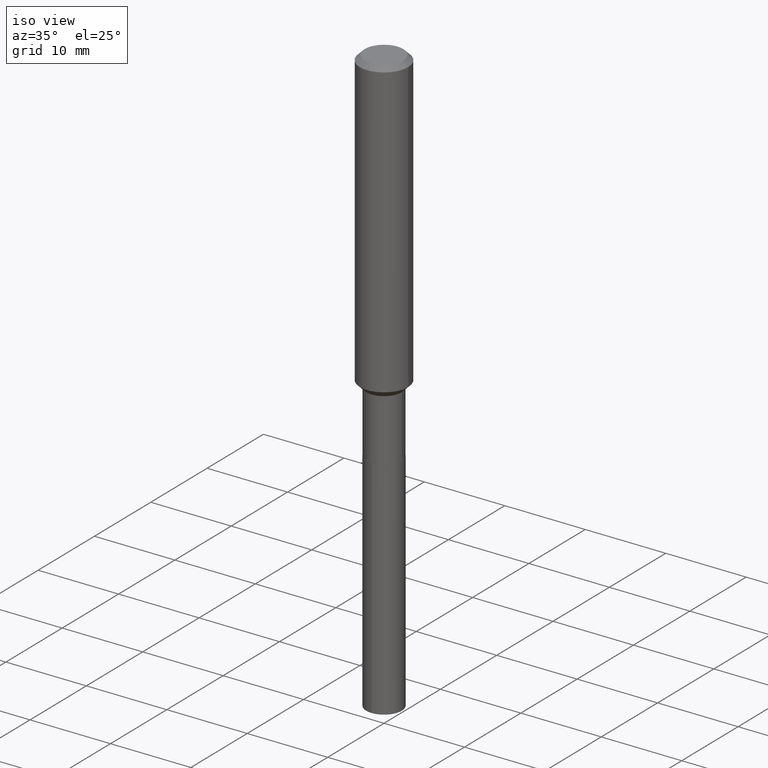
[diagram: clean part render]
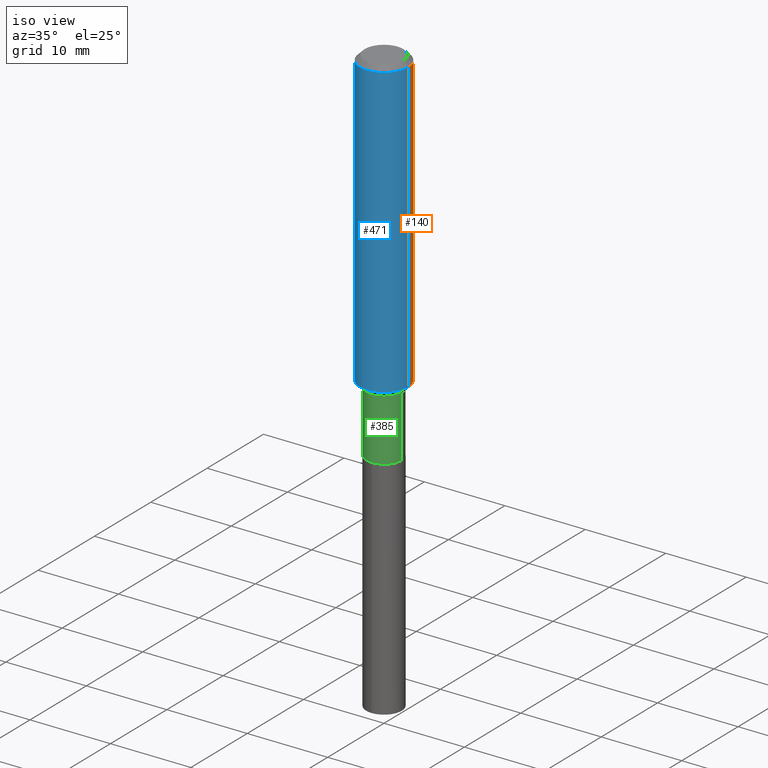
[diagram: same view with three faces highlighted in distinct colors, each labeled with its STEP entity id]
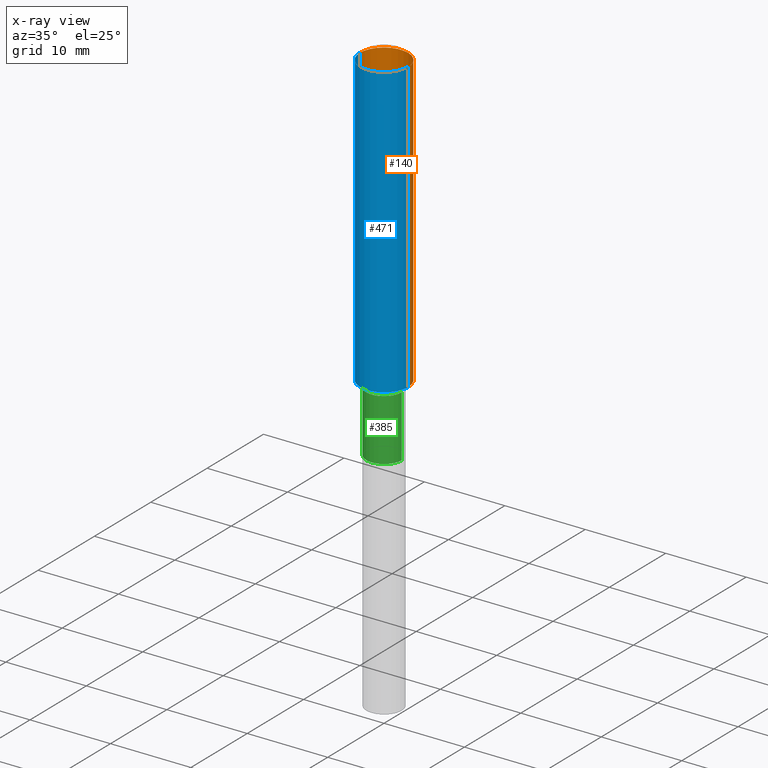
[diagram: x-ray of the same camera — body ghosted, the three highlighted faces saturated]
A machine part, iso view with three faces highlighted in distinct colors.
The next image is the same camera in x-ray (body ghosted, the three faces saturated) — at least one of them is partly hidden behind the body in this view.
Their STEP definitions:

[orange] entity #140 — the highlighted cylindrical surface (edge-blend (fillet) strip) has radius 2.9997 mm, axis along (-0, 0, 1).
#2 = VERTEX_POINT ( 'NONE', #430 ) ;
#6 = CARTESIAN_POINT ( 'NONE',  ( -0.1181000000000000799, 8.391509709326788873E-16, -5.809262341591047988E-30 ) ) ;
#10 = LINE ( 'NONE', #6, #296 ) ;
#16 = EDGE_CURVE ( 'NONE', #118, #75, #10, .T. ) ;
#66 = CIRCLE ( 'NONE', #85, 0.1181000000000001632 ) ;
#68 = ORIENTED_EDGE ( 'NONE', *, *, #16, .T. ) ;
#75 = VERTEX_POINT ( 'NONE', #211 ) ;
#83 = CARTESIAN_POINT ( 'NONE',  ( 3.517806877697317779E-29, -5.022495905925862983E-15, -1.438499999999999446 ) ) ;
#85 = AXIS2_PLACEMENT_3D ( 'NONE', #83, #306, #349 ) ;
#86 = FACE_OUTER_BOUND ( 'NONE', #378, .T. ) ;
#112 = CARTESIAN_POINT ( 'NONE',  ( 0.000000000000000000, 0.000000000000000000, 0.000000000000000000 ) ) ;
#113 = DIRECTION ( 'NONE',  ( -2.445468806185136877E-29, 3.491481338843145188E-15, 1.000000000000000000 ) ) ;
#115 = CYLINDRICAL_SURFACE ( 'NONE', #260, 0.1181000000000000799 ) ;
#118 = VERTEX_POINT ( 'NONE', #132 ) ;
#132 = CARTESIAN_POINT ( 'NONE',  ( -0.1181000000000001632, -4.183344934993183208E-15, -1.438499999999999446 ) ) ;
#140 = ADVANCED_FACE ( 'NONE', ( #86 ), #115, .T. ) ;
#160 = DIRECTION ( 'NONE',  ( -2.445468806185136877E-29, 3.491481338843145188E-15, 1.000000000000000000 ) ) ;
#165 = CARTESIAN_POINT ( 'NONE',  ( 0.1180999999999999966, -9.071566814582237199E-16, -0.02362000000000014088 ) ) ;
#178 = ORIENTED_EDGE ( 'NONE', *, *, #255, .F. ) ;
#183 = VERTEX_POINT ( 'NONE', #165 ) ;
#192 = LINE ( 'NONE', #364, #345 ) ;
#211 = CARTESIAN_POINT ( 'NONE',  ( -0.1180999999999999966, -1.713331376641989642E-15, -0.02362000000000014088 ) ) ;
#255 = EDGE_CURVE ( 'NONE', #183, #75, #427, .T. ) ;
#260 = AXIS2_PLACEMENT_3D ( 'NONE', #112, #423, #342 ) ;
#267 = AXIS2_PLACEMENT_3D ( 'NONE', #390, #472, #439 ) ;
#291 = ORIENTED_EDGE ( 'NONE', *, *, #422, .F. ) ;
#296 = VECTOR ( 'NONE', #113, 39.37007874015748143 ) ;
#306 = DIRECTION ( 'NONE',  ( -2.445468806185136597E-29, 3.491481338843145583E-15, 1.000000000000000000 ) ) ;
#342 = DIRECTION ( 'NONE',  ( 1.000000000000000000, -6.982962677686266711E-15, 4.876176775795936353E-29 ) ) ;
#345 = VECTOR ( 'NONE', #160, 39.37007874015748143 ) ;
#349 = DIRECTION ( 'NONE',  ( 1.000000000000000000, -6.982962677686270655E-15, 0.000000000000000000 ) ) ;
#364 = CARTESIAN_POINT ( 'NONE',  ( 0.1181000000000000799, -8.246878922347486570E-16, 5.758764772215004644E-30 ) ) ;
#378 = EDGE_LOOP ( 'NONE', ( #389, #68, #178, #291 ) ) ;
#389 = ORIENTED_EDGE ( 'NONE', *, *, #400, .T. ) ;
#390 = CARTESIAN_POINT ( 'NONE',  ( 5.776197320209327532E-31, -8.246878922347559293E-17, -0.02362000000000014088 ) ) ;
#400 = EDGE_CURVE ( 'NONE', #2, #118, #66, .T. ) ;
#422 = EDGE_CURVE ( 'NONE', #2, #183, #192, .T. ) ;
#423 = DIRECTION ( 'NONE',  ( -2.445468806185136597E-29, 3.491481338843145583E-15, 1.000000000000000000 ) ) ;
#427 = CIRCLE ( 'NONE', #267, 0.1180999999999999966 ) ;
#430 = CARTESIAN_POINT ( 'NONE',  ( 0.1181000000000001632, -5.847183798160612034E-15, -1.438499999999999446 ) ) ;
#439 = DIRECTION ( 'NONE',  ( 1.000000000000000000, -6.982962677686266711E-15, 0.000000000000000000 ) ) ;
#472 = DIRECTION ( 'NONE',  ( -2.445468806185136597E-29, 3.491481338843145583E-15, 1.000000000000000000 ) ) ;

[blue] entity #471 — the highlighted cylindrical surface (edge-blend (fillet) strip) has radius 2.9997 mm, axis along (-0, 0, 1).
#2 = VERTEX_POINT ( 'NONE', #430 ) ;
#6 = CARTESIAN_POINT ( 'NONE',  ( -0.1181000000000000799, 8.391509709326788873E-16, -5.809262341591047988E-30 ) ) ;
#8 = CARTESIAN_POINT ( 'NONE',  ( 5.776197320209327532E-31, -8.246878922347559293E-17, -0.02362000000000014088 ) ) ;
#10 = LINE ( 'NONE', #6, #296 ) ;
#15 = DIRECTION ( 'NONE',  ( -2.445468806185136597E-29, 3.491481338843145583E-15, 1.000000000000000000 ) ) ;
#16 = EDGE_CURVE ( 'NONE', #118, #75, #10, .T. ) ;
#63 = ORIENTED_EDGE ( 'NONE', *, *, #456, .F. ) ;
#75 = VERTEX_POINT ( 'NONE', #211 ) ;
#113 = DIRECTION ( 'NONE',  ( -2.445468806185136877E-29, 3.491481338843145188E-15, 1.000000000000000000 ) ) ;
#118 = VERTEX_POINT ( 'NONE', #132 ) ;
#124 = DIRECTION ( 'NONE',  ( 1.000000000000000000, -6.982962677686270655E-15, 0.000000000000000000 ) ) ;
#130 = AXIS2_PLACEMENT_3D ( 'NONE', #431, #371, #300 ) ;
#132 = CARTESIAN_POINT ( 'NONE',  ( -0.1181000000000001632, -4.183344934993183208E-15, -1.438499999999999446 ) ) ;
#138 = CIRCLE ( 'NONE', #363, 0.1181000000000001632 ) ;
#139 = FACE_OUTER_BOUND ( 'NONE', #247, .T. ) ;
#160 = DIRECTION ( 'NONE',  ( -2.445468806185136877E-29, 3.491481338843145188E-15, 1.000000000000000000 ) ) ;
#165 = CARTESIAN_POINT ( 'NONE',  ( 0.1180999999999999966, -9.071566814582237199E-16, -0.02362000000000014088 ) ) ;
#183 = VERTEX_POINT ( 'NONE', #165 ) ;
#192 = LINE ( 'NONE', #364, #345 ) ;
#211 = CARTESIAN_POINT ( 'NONE',  ( -0.1180999999999999966, -1.713331376641989642E-15, -0.02362000000000014088 ) ) ;
#247 = EDGE_LOOP ( 'NONE', ( #254, #273, #407, #63 ) ) ;
#254 = ORIENTED_EDGE ( 'NONE', *, *, #16, .F. ) ;
#264 = CYLINDRICAL_SURFACE ( 'NONE', #130, 0.1181000000000000799 ) ;
#273 = ORIENTED_EDGE ( 'NONE', *, *, #454, .T. ) ;
#296 = VECTOR ( 'NONE', #113, 39.37007874015748143 ) ;
#300 = DIRECTION ( 'NONE',  ( 1.000000000000000000, -6.982962677686266711E-15, 4.876176775795936353E-29 ) ) ;
#307 = CIRCLE ( 'NONE', #461, 0.1180999999999999966 ) ;
#341 = DIRECTION ( 'NONE',  ( -2.445468806185136597E-29, 3.491481338843145583E-15, 1.000000000000000000 ) ) ;
#345 = VECTOR ( 'NONE', #160, 39.37007874015748143 ) ;
#363 = AXIS2_PLACEMENT_3D ( 'NONE', #380, #341, #124 ) ;
#364 = CARTESIAN_POINT ( 'NONE',  ( 0.1181000000000000799, -8.246878922347486570E-16, 5.758764772215004644E-30 ) ) ;
#371 = DIRECTION ( 'NONE',  ( -2.445468806185136597E-29, 3.491481338843145583E-15, 1.000000000000000000 ) ) ;
#380 = CARTESIAN_POINT ( 'NONE',  ( 3.517806877697317779E-29, -5.022495905925862983E-15, -1.438499999999999446 ) ) ;
#407 = ORIENTED_EDGE ( 'NONE', *, *, #422, .T. ) ;
#422 = EDGE_CURVE ( 'NONE', #2, #183, #192, .T. ) ;
#430 = CARTESIAN_POINT ( 'NONE',  ( 0.1181000000000001632, -5.847183798160612034E-15, -1.438499999999999446 ) ) ;
#431 = CARTESIAN_POINT ( 'NONE',  ( 0.000000000000000000, 0.000000000000000000, 0.000000000000000000 ) ) ;
#454 = EDGE_CURVE ( 'NONE', #118, #2, #138, .T. ) ;
#456 = EDGE_CURVE ( 'NONE', #75, #183, #307, .T. ) ;
#461 = AXIS2_PLACEMENT_3D ( 'NONE', #8, #15, #481 ) ;
#471 = ADVANCED_FACE ( 'NONE', ( #139 ), #264, .T. ) ;
#481 = DIRECTION ( 'NONE',  ( 1.000000000000000000, -6.982962677686266711E-15, 0.000000000000000000 ) ) ;

[green] entity #385 — the highlighted cylindrical surface (edge-blend (fillet) strip) has radius 2.1996 mm, axis along (-0, 0, 1).
#28 = EDGE_CURVE ( 'NONE', #101, #294, #234, .T. ) ;
#40 = EDGE_LOOP ( 'NONE', ( #289, #72, #51, #350 ) ) ;
#51 = ORIENTED_EDGE ( 'NONE', *, *, #28, .T. ) ;
#55 = LINE ( 'NONE', #204, #412 ) ;
#58 = VERTEX_POINT ( 'NONE', #421 ) ;
#59 = DIRECTION ( 'NONE',  ( -2.445468806185136877E-29, 3.491481338843145188E-15, 1.000000000000000000 ) ) ;
#70 = CIRCLE ( 'NONE', #411, 0.08659999999999998255 ) ;
#72 = ORIENTED_EDGE ( 'NONE', *, *, #137, .T. ) ;
#101 = VERTEX_POINT ( 'NONE', #396 ) ;
#106 = CYLINDRICAL_SURFACE ( 'NONE', #334, 0.08659999999999996867 ) ;
#137 = EDGE_CURVE ( 'NONE', #58, #101, #70, .T. ) ;
#148 = DIRECTION ( 'NONE',  ( -2.445468806185136597E-29, 3.491481338843145583E-15, 1.000000000000000000 ) ) ;
#167 = DIRECTION ( 'NONE',  ( -2.445468806185136877E-29, 3.491481338843145188E-15, 1.000000000000000000 ) ) ;
#198 = CARTESIAN_POINT ( 'NONE',  ( -0.08659999999999995479, -5.042266352293185968E-15, -1.469999999999999529 ) ) ;
#200 = VECTOR ( 'NONE', #59, 39.37007874015748143 ) ;
#202 = CIRCLE ( 'NONE', #406, 0.08659999999999995479 ) ;
#204 = CARTESIAN_POINT ( 'NONE',  ( -0.08659999999999996867, 6.153300091682465383E-16, -4.259797788160746705E-30 ) ) ;
#213 = CARTESIAN_POINT ( 'NONE',  ( 3.594839145092149699E-29, -5.132477568099422441E-15, -1.469999999999999529 ) ) ;
#234 = LINE ( 'NONE', #391, #200 ) ;
#270 = CARTESIAN_POINT ( 'NONE',  ( 0.08659999999999995479, -5.737202135987053365E-15, -1.469999999999999529 ) ) ;
#289 = ORIENTED_EDGE ( 'NONE', *, *, #488, .F. ) ;
#294 = VERTEX_POINT ( 'NONE', #270 ) ;
#334 = AXIS2_PLACEMENT_3D ( 'NONE', #415, #376, #339 ) ;
#339 = DIRECTION ( 'NONE',  ( 1.000000000000000000, -6.982962677686267499E-15, 4.876176775795936353E-29 ) ) ;
#350 = ORIENTED_EDGE ( 'NONE', *, *, #450, .F. ) ;
#376 = DIRECTION ( 'NONE',  ( -2.445468806185136597E-29, 3.491481338843145583E-15, 1.000000000000000000 ) ) ;
#377 = DIRECTION ( 'NONE',  ( -2.445468806185136597E-29, 3.491481338843145583E-15, 1.000000000000000000 ) ) ;
#385 = ADVANCED_FACE ( 'NONE', ( #490 ), #106, .T. ) ;
#391 = CARTESIAN_POINT ( 'NONE',  ( 0.08659999999999996867, -6.047245678876305299E-16, 4.222769087839279152E-30 ) ) ;
#393 = DIRECTION ( 'NONE',  ( 1.000000000000000000, -6.982962677686272233E-15, 0.000000000000000000 ) ) ;
#396 = CARTESIAN_POINT ( 'NONE',  ( 0.08659999999999998255, -6.787439722711072510E-15, -1.770799999999999930 ) ) ;
#404 = CARTESIAN_POINT ( 'NONE',  ( 4.330436161992639608E-29, -6.182715154823442375E-15, -1.770799999999999930 ) ) ;
#406 = AXIS2_PLACEMENT_3D ( 'NONE', #213, #148, #393 ) ;
#411 = AXIS2_PLACEMENT_3D ( 'NONE', #404, #377, #467 ) ;
#412 = VECTOR ( 'NONE', #167, 39.37007874015748143 ) ;
#414 = VERTEX_POINT ( 'NONE', #198 ) ;
#415 = CARTESIAN_POINT ( 'NONE',  ( 0.000000000000000000, 0.000000000000000000, 0.000000000000000000 ) ) ;
#421 = CARTESIAN_POINT ( 'NONE',  ( -0.08659999999999998255, -5.042266352293185968E-15, -1.770799999999999930 ) ) ;
#450 = EDGE_CURVE ( 'NONE', #414, #294, #202, .T. ) ;
#467 = DIRECTION ( 'NONE',  ( 1.000000000000000000, -6.982962677686269866E-15, 0.000000000000000000 ) ) ;
#488 = EDGE_CURVE ( 'NONE', #58, #414, #55, .T. ) ;
#490 = FACE_OUTER_BOUND ( 'NONE', #40, .T. ) ;